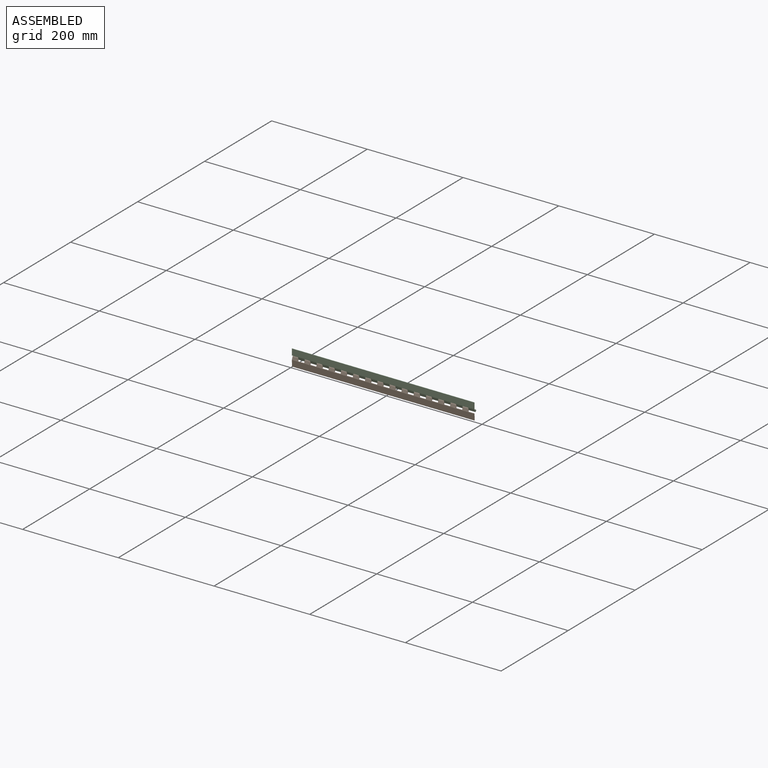
[diagram: assembled view]
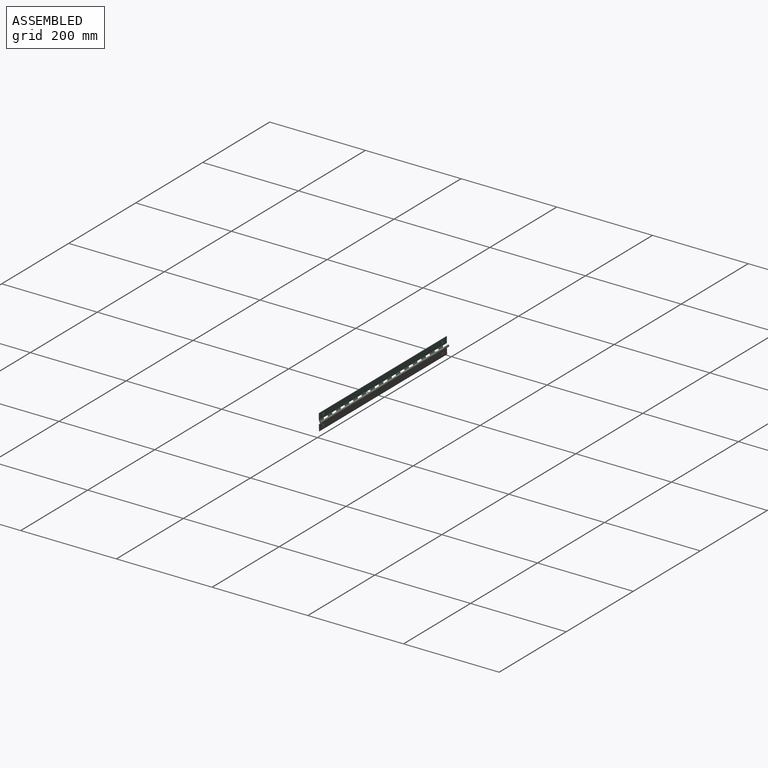
[diagram: assembled view, second angle]
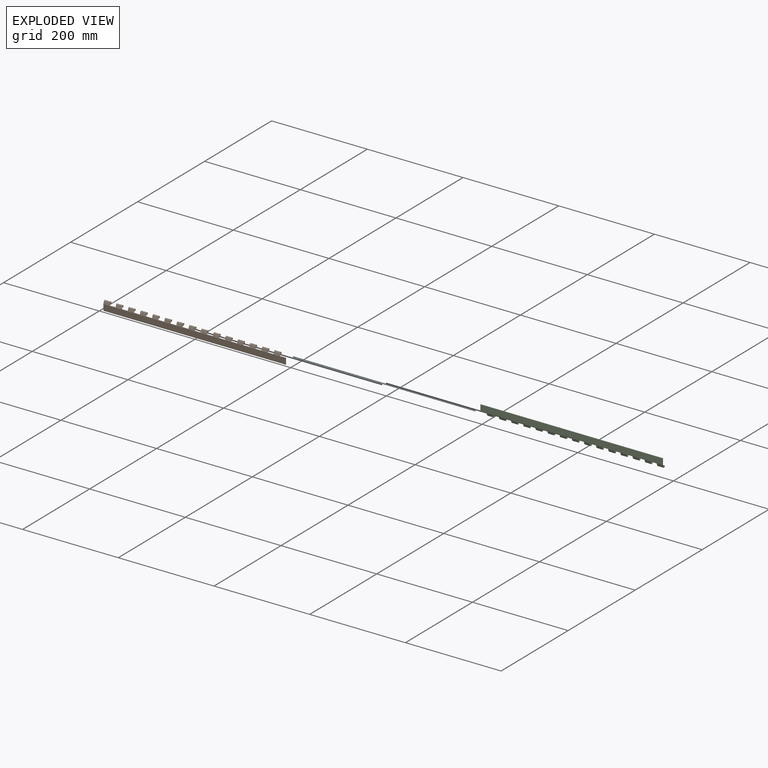
[diagram: exploded view]
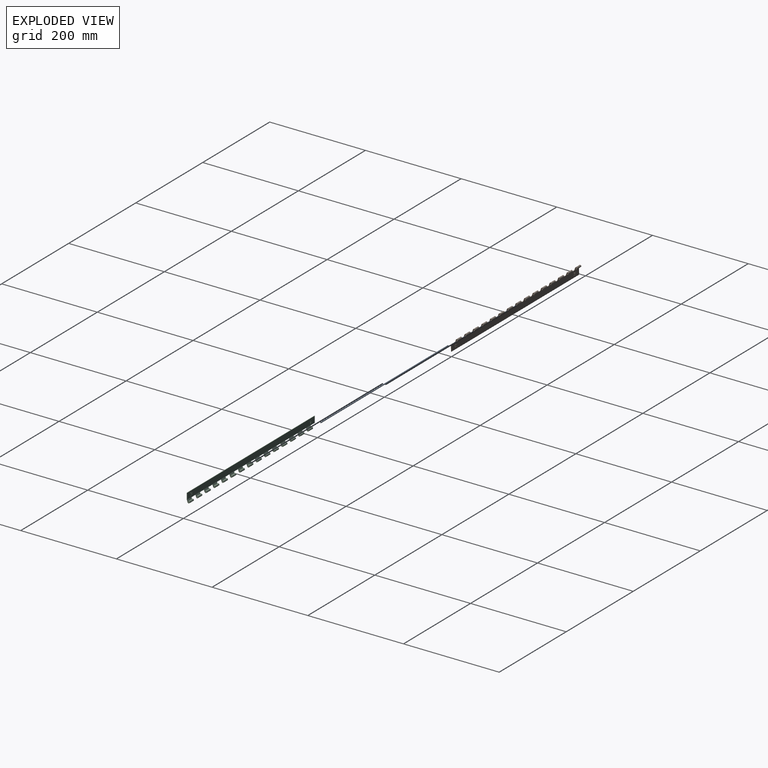
[diagram: exploded view, second angle]
ASSEMBLY  parts=3 mates=4
PART A: 5 faces, bbox 381x2.3x2.3 mm
  f0: cone r=0.65mm half-angle=45deg, axis (-1,0,0), area 4.1mm2, adj f2,f3
  f1: cone r=1.16mm half-angle=45deg, axis (1,0,0), area 4.1mm2, adj f2,f4
  f2: cylinder r=1.16mm len=379.98mm, axis (-1,0,0), area 2759.2mm2, adj f0,f1
  f3: plane 1.3x1.3mm, normal (1,0,0), area 1.3mm2, adj f0
  f4: plane 1.3x1.3mm, normal (-1,0,0), area 1.3mm2, adj f1
PART B: 202 faces, bbox 381x6.1x19.1 mm
  f0: cylinder r=2.12mm len=12.7mm, axis (-1,0,0), area 138.7mm2, adj f34,f48,f55,f58
  f1: cylinder r=1.16mm len=12.7mm, axis (-1,0,0), area 75.6mm2, adj f33,f48,f55,f58
  f2: cylinder r=2.12mm len=12.7mm, axis (-1,0,0), area 138.7mm2, adj f34,f47,f57,f61
  f3: cylinder r=1.16mm len=12.7mm, axis (-1,0,0), area 75.6mm2, adj f33,f47,f57,f61
  f4: cylinder r=2.12mm len=12.7mm, axis (-1,0,0), area 138.7mm2, adj f34,f46,f60,f64
  f5: cylinder r=1.16mm len=12.7mm, axis (-1,0,0), area 75.6mm2, adj f33,f46,f60,f64
  f6: cylinder r=2.12mm len=12.7mm, axis (-1,0,0), area 138.7mm2, adj f34,f45,f63,f67
  f7: cylinder r=1.16mm len=12.7mm, axis (-1,0,0), area 75.6mm2, adj f33,f45,f63,f67
  f8: cylinder r=2.12mm len=12.7mm, axis (-1,0,0), area 138.7mm2, adj f34,f44,f66,f70
  f9: cylinder r=1.16mm len=12.7mm, axis (-1,0,0), area 75.6mm2, adj f33,f44,f66,f70
  f10: cylinder r=2.12mm len=12.7mm, axis (-1,0,0), area 138.7mm2, adj f34,f43,f69,f73
  f11: cylinder r=1.16mm len=12.7mm, axis (-1,0,0), area 75.6mm2, adj f33,f43,f69,f73
  f12: cylinder r=2.12mm len=12.7mm, axis (-1,0,0), area 138.7mm2, adj f34,f42,f72,f76
  f13: cylinder r=1.16mm len=12.7mm, axis (-1,0,0), area 75.6mm2, adj f33,f42,f72,f76
  f14: cylinder r=2.12mm len=12.7mm, axis (-1,0,0), area 138.7mm2, adj f34,f41,f75,f79
  f15: cylinder r=1.16mm len=12.7mm, axis (-1,0,0), area 75.6mm2, adj f33,f41,f75,f79
  f16: cylinder r=2.12mm len=12.7mm, axis (-1,0,0), area 138.7mm2, adj f34,f40,f78,f82
  f17: cylinder r=1.16mm len=12.7mm, axis (-1,0,0), area 75.6mm2, adj f33,f40,f78,f82
  f18: cylinder r=2.12mm len=12.7mm, axis (-1,0,0), area 138.7mm2, adj f34,f39,f81,f85
  f19: cylinder r=1.16mm len=12.7mm, axis (-1,0,0), area 75.6mm2, adj f33,f39,f81,f85
  f20: cylinder r=2.12mm len=12.7mm, axis (-1,0,0), area 138.7mm2, adj f34,f38,f84,f88
  f21: cylinder r=1.16mm len=12.7mm, axis (-1,0,0), area 75.6mm2, adj f33,f38,f84,f88
  f22: cylinder r=2.12mm len=12.7mm, axis (-1,0,0), area 138.7mm2, adj f34,f37,f87,f91
  f23: cylinder r=1.16mm len=12.7mm, axis (-1,0,0), area 75.6mm2, adj f33,f37,f87,f91
  f24: cylinder r=2.12mm len=12.7mm, axis (-1,0,0), area 138.7mm2, adj f34,f36,f90,f94
  f25: cylinder r=1.16mm len=12.7mm, axis (-1,0,0), area 75.6mm2, adj f33,f36,f90,f94
  f26: cylinder r=2.12mm len=12.7mm, axis (-1,0,0), area 138.7mm2, adj f34,f35,f93,f97
  f27: cylinder r=1.16mm len=12.7mm, axis (-1,0,0), area 75.6mm2, adj f33,f35,f93,f97
  f28: cylinder r=2.12mm len=12.7mm, axis (-1,0,0), area 138.7mm2, adj f32,f34,f53,f96
  f29: cylinder r=1.16mm len=12.7mm, axis (-1,0,0), area 75.6mm2, adj f32,f33,f53,f96
  f30: plane 5.31x5.31mm, normal (0,1,0), area 20.2mm2, adj f155,f156,f157,f158,f165,f166,f167,f168
  f31: plane 5.31x5.31mm, normal (0,1,0), area 20.2mm2, adj f103,f104,f105,f106,f113,f114,f115,f116
  f32: plane 12.7x0.7mm, normal (0,-0.69,0.72), area 12.3mm2, adj f28,f29,f53,f96
  f33: plane 381x4.91mm, normal (0,0.93,-0.36), area 1112.3mm2, adj f1,f3,f5,f7,f9,f11,f13,f15
  f34: plane 381x5.08mm, normal (0,-0.93,0.36), area 1109.9mm2, adj f0,f2,f4,f6,f8,f10,f12,f14
  f35: plane 12.7x0.7mm, normal (0,-0.69,0.72), area 12.3mm2, adj f26,f27,f93,f97
  f36: plane 12.7x0.7mm, normal (0,-0.69,0.72), area 12.3mm2, adj f24,f25,f90,f94
  f37: plane 12.7x0.7mm, normal (0,-0.69,0.72), area 12.3mm2, adj f22,f23,f87,f91
  f38: plane 12.7x0.7mm, normal (0,-0.69,0.72), area 12.3mm2, adj f20,f21,f84,f88
  f39: plane 12.7x0.7mm, normal (0,-0.69,0.72), area 12.3mm2, adj f18,f19,f81,f85
  f40: plane 12.7x0.7mm, normal (0,-0.69,0.72), area 12.3mm2, adj f16,f17,f78,f82
  f41: plane 12.7x0.7mm, normal (0,-0.69,0.72), area 12.3mm2, adj f14,f15,f75,f79
  f42: plane 12.7x0.7mm, normal (0,-0.69,0.72), area 12.3mm2, adj f12,f13,f72,f76
  f43: plane 12.7x0.7mm, normal (0,-0.69,0.72), area 12.3mm2, adj f10,f11,f69,f73
  f44: plane 12.7x0.7mm, normal (0,-0.69,0.72), area 12.3mm2, adj f8,f9,f66,f70
  f45: plane 12.7x0.7mm, normal (0,-0.69,0.72), area 12.3mm2, adj f6,f7,f63,f67
  f46: plane 12.7x0.7mm, normal (0,-0.69,0.72), area 12.3mm2, adj f4,f5,f60,f64
  f47: plane 12.7x0.7mm, normal (0,-0.69,0.72), area 12.3mm2, adj f2,f3,f57,f61
  f48: plane 12.7x0.7mm, normal (0,-0.69,0.72), area 12.3mm2, adj f0,f1,f55,f58
  f49: plane 381x12.7mm, normal (0,-1,0), area 4838.7mm2, adj f34,f50,f52,f53
  f50: plane 381x0.97mm, normal (0,0,-1), area 367.7mm2, adj f49,f51,f52,f53
  f51: plane 381x12.52mm, normal (0,1,0), area 4701.5mm2, adj f33,f50,f52,f53,f98,f99,f100,f101
  f52: plane 13.06x1.17mm, normal (1,0,0), area 12.6mm2, adj f33,f34,f49,f50,f51,f54
  f53: plane 19.14x6.06mm, normal (-1,0,0), area 25.5mm2, adj f28,f29,f32,f33,f34,f49,f50,f51
  f54: plane 12.7x1.03mm, normal (0,0,1), area 13.1mm2, adj f33,f34,f52,f55
  f55: plane 6.08x5.92mm, normal (1,0,0), area 12.8mm2, adj f0,f1,f33,f34,f48,f54
  f56: plane 12.7x1.03mm, normal (0,0,1), area 13.1mm2, adj f33,f34,f57,f58
  f57: plane 6.08x5.92mm, normal (1,0,0), area 12.8mm2, adj f2,f3,f33,f34,f47,f56
  f58: plane 6.08x5.92mm, normal (-1,0,0), area 12.8mm2, adj f0,f1,f33,f34,f48,f56
  f59: plane 12.7x1.03mm, normal (0,0,1), area 13.1mm2, adj f33,f34,f60,f61
  f60: plane 6.08x5.92mm, normal (1,0,0), area 12.8mm2, adj f4,f5,f33,f34,f46,f59
  f61: plane 6.08x5.92mm, normal (-1,0,0), area 12.8mm2, adj f2,f3,f33,f34,f47,f59
  f62: plane 12.7x1.03mm, normal (0,0,1), area 13.1mm2, adj f33,f34,f63,f64
  f63: plane 6.08x5.92mm, normal (1,0,0), area 12.8mm2, adj f6,f7,f33,f34,f45,f62
  f64: plane 6.08x5.92mm, normal (-1,0,0), area 12.8mm2, adj f4,f5,f33,f34,f46,f62
  f65: plane 12.7x1.03mm, normal (0,0,1), area 13.1mm2, adj f33,f34,f66,f67
  f66: plane 6.08x5.92mm, normal (1,0,0), area 12.8mm2, adj f8,f9,f33,f34,f44,f65
  f67: plane 6.08x5.92mm, normal (-1,0,0), area 12.8mm2, adj f6,f7,f33,f34,f45,f65
  f68: plane 12.7x1.03mm, normal (0,0,1), area 13.1mm2, adj f33,f34,f69,f70
  f69: plane 6.08x5.92mm, normal (1,0,0), area 12.8mm2, adj f10,f11,f33,f34,f43,f68
  f70: plane 6.08x5.92mm, normal (-1,0,0), area 12.8mm2, adj f8,f9,f33,f34,f44,f68
  f71: plane 12.7x1.03mm, normal (0,0,1), area 13.1mm2, adj f33,f34,f72,f73
  f72: plane 6.08x5.92mm, normal (1,0,0), area 12.8mm2, adj f12,f13,f33,f34,f42,f71
  f73: plane 6.08x5.92mm, normal (-1,0,0), area 12.8mm2, adj f10,f11,f33,f34,f43,f71
  f74: plane 12.7x1.03mm, normal (0,0,1), area 13.1mm2, adj f33,f34,f75,f76
  f75: plane 6.08x5.92mm, normal (1,0,0), area 12.8mm2, adj f14,f15,f33,f34,f41,f74
  f76: plane 6.08x5.92mm, normal (-1,0,0), area 12.8mm2, adj f12,f13,f33,f34,f42,f74
  f77: plane 12.7x1.03mm, normal (0,0,1), area 13.1mm2, adj f33,f34,f78,f79
  f78: plane 6.08x5.92mm, normal (1,0,0), area 12.8mm2, adj f16,f17,f33,f34,f40,f77
  f79: plane 6.08x5.92mm, normal (-1,0,0), area 12.8mm2, adj f14,f15,f33,f34,f41,f77
  f80: plane 12.7x1.03mm, normal (0,0,1), area 13.1mm2, adj f33,f34,f81,f82
  f81: plane 6.08x5.92mm, normal (1,0,0), area 12.8mm2, adj f18,f19,f33,f34,f39,f80
  f82: plane 6.08x5.92mm, normal (-1,0,0), area 12.8mm2, adj f16,f17,f33,f34,f40,f80
  f83: plane 12.7x1.03mm, normal (0,0,1), area 13.1mm2, adj f33,f34,f84,f85
  f84: plane 6.08x5.92mm, normal (1,0,0), area 12.8mm2, adj f20,f21,f33,f34,f38,f83
  f85: plane 6.08x5.92mm, normal (-1,0,0), area 12.8mm2, adj f18,f19,f33,f34,f39,f83
  f86: plane 12.7x1.03mm, normal (0,0,1), area 13.1mm2, adj f33,f34,f87,f88
  f87: plane 6.08x5.92mm, normal (1,0,0), area 12.8mm2, adj f22,f23,f33,f34,f37,f86
  f88: plane 6.08x5.92mm, normal (-1,0,0), area 12.8mm2, adj f20,f21,f33,f34,f38,f86
  f89: plane 12.7x1.03mm, normal (0,0,1), area 13.1mm2, adj f33,f34,f90,f91
  f90: plane 6.08x5.92mm, normal (1,0,0), area 12.8mm2, adj f24,f25,f33,f34,f36,f89
  f91: plane 6.08x5.92mm, normal (-1,0,0), area 12.8mm2, adj f22,f23,f33,f34,f37,f89
  f92: plane 12.7x1.03mm, normal (0,0,1), area 13.1mm2, adj f33,f34,f93,f94
  f93: plane 6.08x5.92mm, normal (1,0,0), area 12.8mm2, adj f26,f27,f33,f34,f35,f92
  f94: plane 6.08x5.92mm, normal (-1,0,0), area 12.8mm2, adj f24,f25,f33,f34,f36,f92
  f95: plane 12.7x1.03mm, normal (0,0,1), area 13.1mm2, adj f33,f34,f96,f97
  f96: plane 6.08x5.92mm, normal (1,0,0), area 12.8mm2, adj f28,f29,f32,f33,f34,f95
  f97: plane 6.08x5.92mm, normal (-1,0,0), area 12.8mm2, adj f26,f27,f33,f34,f35,f95
  f98: plane 5.82x0.25mm, normal (-1,0,0), area 1.5mm2, adj f51,f99,f101,f102
  f99: plane 5.82x0.25mm, normal (0,0,-1), area 1.5mm2, adj f51,f98,f100,f102
  f100: plane 5.56x0.25mm, normal (1,0,0), area 1.4mm2, adj f51,f99,f102,f107
  f101: plane 5.56x0.25mm, normal (0,0,1), area 1.4mm2, adj f51,f98,f102,f108
  f102: plane 6.88x6.88mm, normal (0,1,0), area 6.2mm2, adj f98,f99,f100,f101,f103,f104,f105,f106
  f103: plane 5.31x0.25mm, normal (1,0,0), area 1.3mm2, adj f31,f102,f104,f106
  f104: plane 5.31x0.25mm, normal (0,0,1), area 1.3mm2, adj f31,f102,f103,f105
  f105: plane 5.31x0.25mm, normal (-1,0,0), area 1.3mm2, adj f31,f102,f104,f106
  f106: plane 5.31x0.25mm, normal (0,0,-1), area 1.3mm2, adj f31,f102,f103,f105
  f107: plane 1.07x0.25mm, normal (0,0,-1), area 0.3mm2, adj f51,f100,f102,f109
  f108: plane 1.07x0.25mm, normal (-1,0,0), area 0.3mm2, adj f51,f101,f102,f112
  f109: plane 0.25x0.25mm, normal (1,0,0), area 0.1mm2, adj f51,f102,f107,f110
  f110: plane 1.07x0.25mm, normal (0,0,1), area 0.3mm2, adj f51,f102,f109,f111
  f111: plane 1.07x0.25mm, normal (1,0,0), area 0.3mm2, adj f51,f102,f110,f112
  f112: plane 0.25x0.25mm, normal (0,0,1), area 0.1mm2, adj f51,f102,f108,f111
  f113: bspline ~0.25x0.14mm, area 0mm2, adj f31,f114,f148,f149
  f114: plane 0.68x0.36mm, normal (0.46,0,0.89), area 0.2mm2, adj f31,f113,f115,f149
  f115: bspline ~0.25x0.21mm, area 0.1mm2, adj f31,f114,f116,f149
  f116: bspline ~0.26x0.25mm, area 0.1mm2, adj f31,f115,f117,f149
  f117: bspline ~0.63x0.25mm, area 0.2mm2, adj f31,f116,f118,f149
  f118: bspline ~3x0.99mm, area 0.8mm2, adj f31,f117,f119,f149
  f119: bspline ~0.56x0.55mm, area 0.2mm2, adj f31,f118,f120,f149
  f120: bspline ~1.78x1.23mm, area 0.6mm2, adj f31,f119,f121,f149
  f121: bspline ~0.95x0.25mm, area 0.2mm2, adj f31,f120,f122,f149
  f122: bspline ~1.84x1.34mm, area 0.6mm2, adj f31,f121,f123,f149
  f123: bspline ~0.25x0.15mm, area 0.1mm2, adj f31,f122,f124,f149
  f124: bspline ~0.46x0.25mm, area 0.1mm2, adj f31,f123,f125,f149
  f125: bspline ~1.29x0.89mm, area 0.4mm2, adj f31,f124,f126,f149
  f126: bspline ~0.71x0.25mm, area 0.2mm2, adj f31,f125,f127,f149
  f127: plane 0.77x0.58mm, normal (0.8,0,0.6), area 0.2mm2, adj f31,f126,f128,f149
  f128: bspline ~0.61x0.25mm, area 0.2mm2, adj f31,f127,f129,f149
  f129: bspline ~0.69x0.32mm, area 0.2mm2, adj f31,f128,f130,f149
  f130: bspline ~0.25x0.24mm, area 0.1mm2, adj f31,f129,f131,f149
  f131: bspline ~0.51x0.32mm, area 0.2mm2, adj f31,f130,f132,f149
  f132: bspline ~0.25x0.18mm, area 0.1mm2, adj f31,f131,f133,f149
  f133: bspline ~1.04x0.37mm, area 0.3mm2, adj f31,f132,f134,f149
  f134: bspline ~1.15x0.25mm, area 0.3mm2, adj f31,f133,f135,f149
  f135: bspline ~1.13x0.84mm, area 0.4mm2, adj f31,f134,f136,f149
  f136: bspline ~0.25x0.16mm, area 0mm2, adj f31,f135,f137,f149
  f137: bspline ~0.25x0.21mm, area 0.1mm2, adj f31,f136,f138,f149
  f138: bspline ~0.75x0.47mm, area 0.2mm2, adj f31,f137,f139,f149
  f139: bspline ~0.25x0.21mm, area 0.1mm2, adj f31,f138,f140,f149
  f140: bspline ~0.37x0.25mm, area 0.1mm2, adj f31,f139,f141,f149
  f141: bspline ~0.49x0.37mm, area 0.2mm2, adj f31,f140,f142,f149
  f142: bspline ~0.25x0.14mm, area 0mm2, adj f31,f141,f143,f149
  f143: plane 0.83x0.25mm, normal (-0.23,0,-0.97), area 0.2mm2, adj f31,f142,f144,f149
  f144: bspline ~1.71x1.4mm, area 0.6mm2, adj f31,f143,f145,f149
  f145: bspline ~0.31x0.25mm, area 0.1mm2, adj f31,f144,f146,f149
  f146: bspline ~1.7x0.53mm, area 0.5mm2, adj f31,f145,f147,f149
  f147: bspline ~0.35x0.25mm, area 0.1mm2, adj f31,f146,f148,f149
  f148: bspline ~0.25x0.25mm, area 0.1mm2, adj f31,f113,f147,f149
  f149: plane 4.96x4.37mm, normal (0,1,0), area 7.9mm2, adj f113,f114,f115,f116,f117,f118,f119,f120
  f150: plane 5.82x0.25mm, normal (-1,0,0), area 1.5mm2, adj f51,f151,f153,f154
  f151: plane 5.82x0.25mm, normal (0,0,-1), area 1.5mm2, adj f51,f150,f152,f154
  f152: plane 5.56x0.25mm, normal (1,0,0), area 1.4mm2, adj f51,f151,f154,f159
  f153: plane 5.56x0.25mm, normal (0,0,1), area 1.4mm2, adj f51,f150,f154,f160
  f154: plane 6.88x6.88mm, normal (0,1,0), area 6.2mm2, adj f150,f151,f152,f153,f155,f156,f157,f158
  f155: plane 5.31x0.25mm, normal (1,0,0), area 1.3mm2, adj f30,f154,f156,f158
  f156: plane 5.31x0.25mm, normal (0,0,1), area 1.3mm2, adj f30,f154,f155,f157
  f157: plane 5.31x0.25mm, normal (-1,0,0), area 1.3mm2, adj f30,f154,f156,f158
  f158: plane 5.31x0.25mm, normal (0,0,-1), area 1.3mm2, adj f30,f154,f155,f157
  f159: plane 1.07x0.25mm, normal (0,0,-1), area 0.3mm2, adj f51,f152,f154,f161
  f160: plane 1.07x0.25mm, normal (-1,0,0), area 0.3mm2, adj f51,f153,f154,f164
  f161: plane 0.25x0.25mm, normal (1,0,0), area 0.1mm2, adj f51,f154,f159,f162
  f162: plane 1.07x0.25mm, normal (0,0,1), area 0.3mm2, adj f51,f154,f161,f163
  f163: plane 1.07x0.25mm, normal (1,0,0), area 0.3mm2, adj f51,f154,f162,f164
  f164: plane 0.25x0.25mm, normal (0,0,1), area 0.1mm2, adj f51,f154,f160,f163
  f165: bspline ~0.25x0.14mm, area 0mm2, adj f30,f166,f200,f201
  f166: plane 0.68x0.36mm, normal (0.46,0,0.89), area 0.2mm2, adj f30,f165,f167,f201
  f167: bspline ~0.25x0.21mm, area 0.1mm2, adj f30,f166,f168,f201
  f168: bspline ~0.26x0.25mm, area 0.1mm2, adj f30,f167,f169,f201
  f169: bspline ~0.63x0.25mm, area 0.2mm2, adj f30,f168,f170,f201
  f170: bspline ~3x0.99mm, area 0.8mm2, adj f30,f169,f171,f201
  f171: bspline ~0.56x0.55mm, area 0.2mm2, adj f30,f170,f172,f201
  f172: bspline ~1.78x1.23mm, area 0.6mm2, adj f30,f171,f173,f201
  f173: bspline ~0.95x0.25mm, area 0.2mm2, adj f30,f172,f174,f201
  f174: bspline ~1.84x1.34mm, area 0.6mm2, adj f30,f173,f175,f201
  f175: bspline ~0.25x0.15mm, area 0.1mm2, adj f30,f174,f176,f201
  f176: bspline ~0.46x0.25mm, area 0.1mm2, adj f30,f175,f177,f201
  f177: bspline ~1.29x0.89mm, area 0.4mm2, adj f30,f176,f178,f201
  f178: bspline ~0.71x0.25mm, area 0.2mm2, adj f30,f177,f179,f201
  f179: plane 0.77x0.58mm, normal (0.8,0,0.6), area 0.2mm2, adj f30,f178,f180,f201
  f180: bspline ~0.61x0.25mm, area 0.2mm2, adj f30,f179,f181,f201
  f181: bspline ~0.69x0.32mm, area 0.2mm2, adj f30,f180,f182,f201
  f182: bspline ~0.25x0.24mm, area 0.1mm2, adj f30,f181,f183,f201
  f183: bspline ~0.51x0.32mm, area 0.2mm2, adj f30,f182,f184,f201
  f184: bspline ~0.25x0.18mm, area 0.1mm2, adj f30,f183,f185,f201
  f185: bspline ~1.04x0.37mm, area 0.3mm2, adj f30,f184,f186,f201
  f186: bspline ~1.15x0.25mm, area 0.3mm2, adj f30,f185,f187,f201
  f187: bspline ~1.13x0.84mm, area 0.4mm2, adj f30,f186,f188,f201
  f188: bspline ~0.25x0.16mm, area 0mm2, adj f30,f187,f189,f201
  f189: bspline ~0.25x0.21mm, area 0.1mm2, adj f30,f188,f190,f201
  f190: bspline ~0.75x0.47mm, area 0.2mm2, adj f30,f189,f191,f201
  f191: bspline ~0.25x0.21mm, area 0.1mm2, adj f30,f190,f192,f201
  f192: bspline ~0.37x0.25mm, area 0.1mm2, adj f30,f191,f193,f201
  f193: bspline ~0.49x0.37mm, area 0.2mm2, adj f30,f192,f194,f201
  f194: bspline ~0.25x0.14mm, area 0mm2, adj f30,f193,f195,f201
  f195: plane 0.83x0.25mm, normal (-0.23,0,-0.97), area 0.2mm2, adj f30,f194,f196,f201
  f196: bspline ~1.71x1.4mm, area 0.6mm2, adj f30,f195,f197,f201
  f197: bspline ~0.31x0.25mm, area 0.1mm2, adj f30,f196,f198,f201
  f198: bspline ~1.7x0.53mm, area 0.5mm2, adj f30,f197,f199,f201
  f199: bspline ~0.35x0.25mm, area 0.1mm2, adj f30,f198,f200,f201
  f200: bspline ~0.25x0.25mm, area 0.1mm2, adj f30,f165,f199,f201
  f201: plane 4.96x4.37mm, normal (0,1,0), area 7.9mm2, adj f165,f166,f167,f168,f169,f170,f171,f172
PART C: same geometry as B
PLACE A t=(-2.87,-1.97,2.85)mm fixed
PLACE B rot(axis=(1,0,0),1.9deg) t=(-2.87,-1.97,2.85)mm
PLACE C rot(axis=(0,1,0),180deg) t=(-2.87,-1.97,2.85)mm
MATE planar A.f0 <-> B.f53  axis (-1,0,0) through (-193.37,-1.97,2.85)mm
MATE cylindrical B.f0 <-> A.f0  axis (-1,0,0) through (174.93,-1.97,2.85)mm
MATE cylindrical A.f0 <-> C.f0  axis (-1,0,0) through (-2.87,-1.97,2.85)mm
MATE planar A.f0 <-> C.f53  axis (1,0,0) through (187.63,-1.97,2.85)mm
